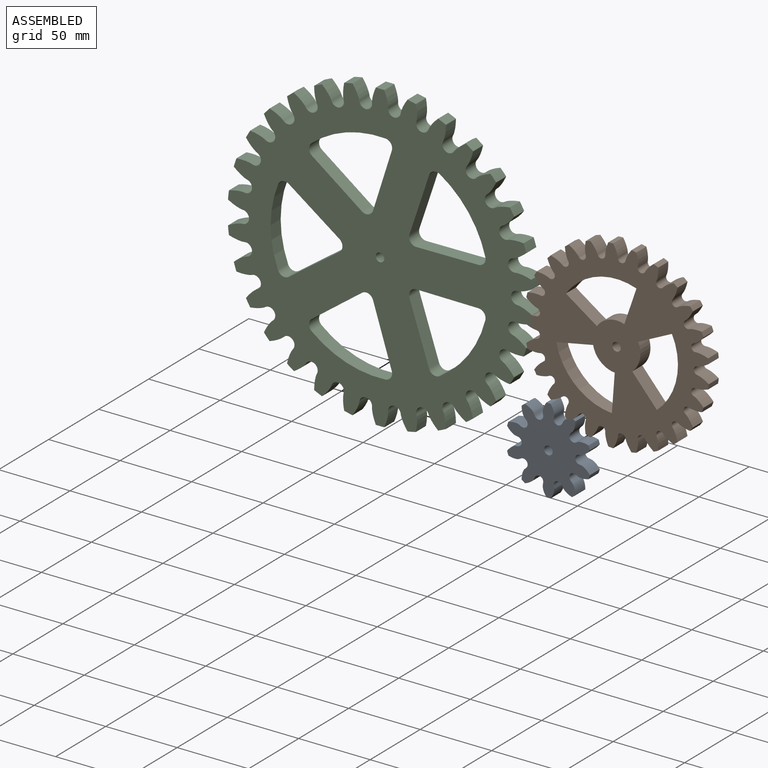
[diagram: assembled view]
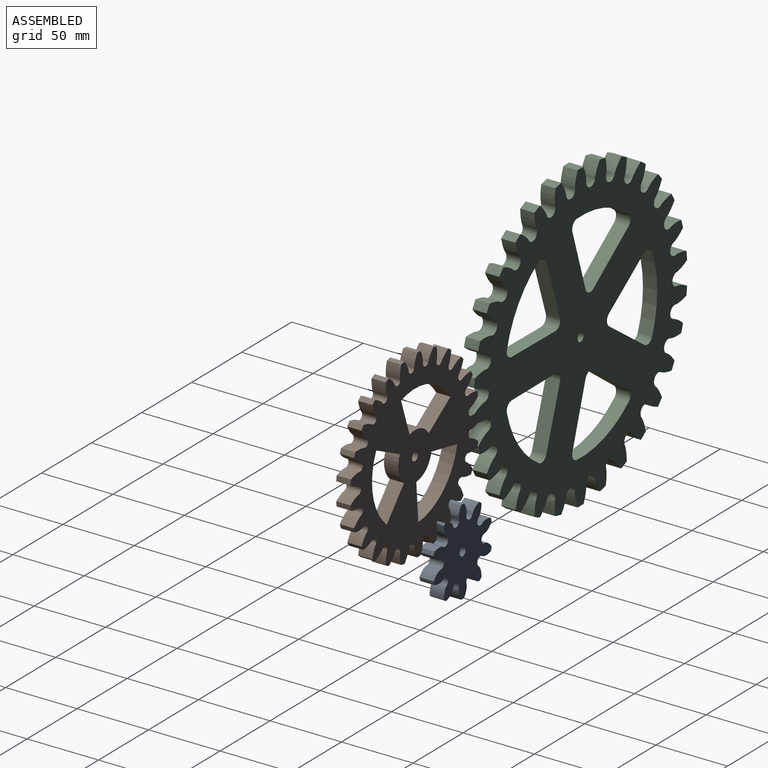
[diagram: assembled view, second angle]
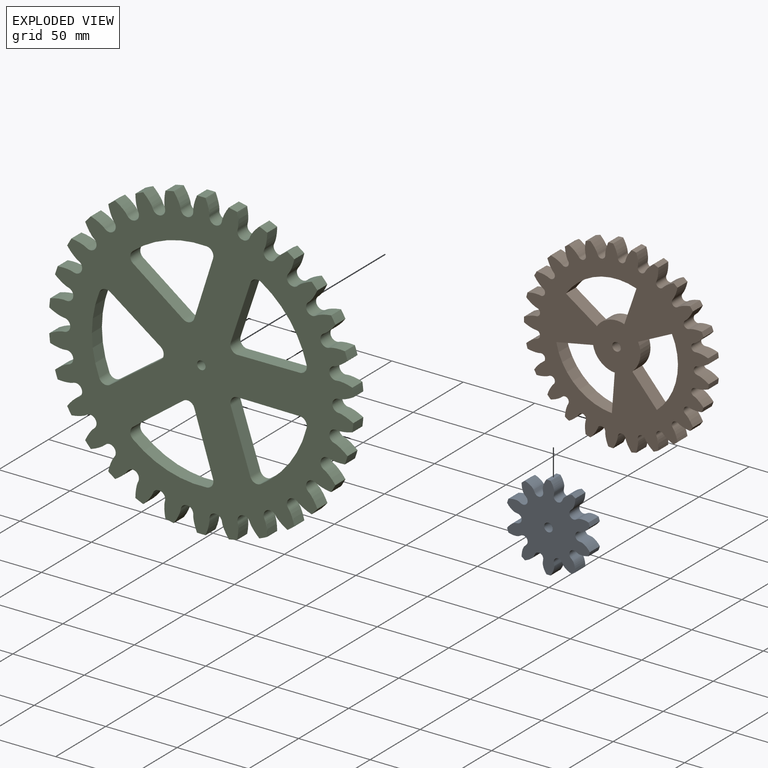
[diagram: exploded view]
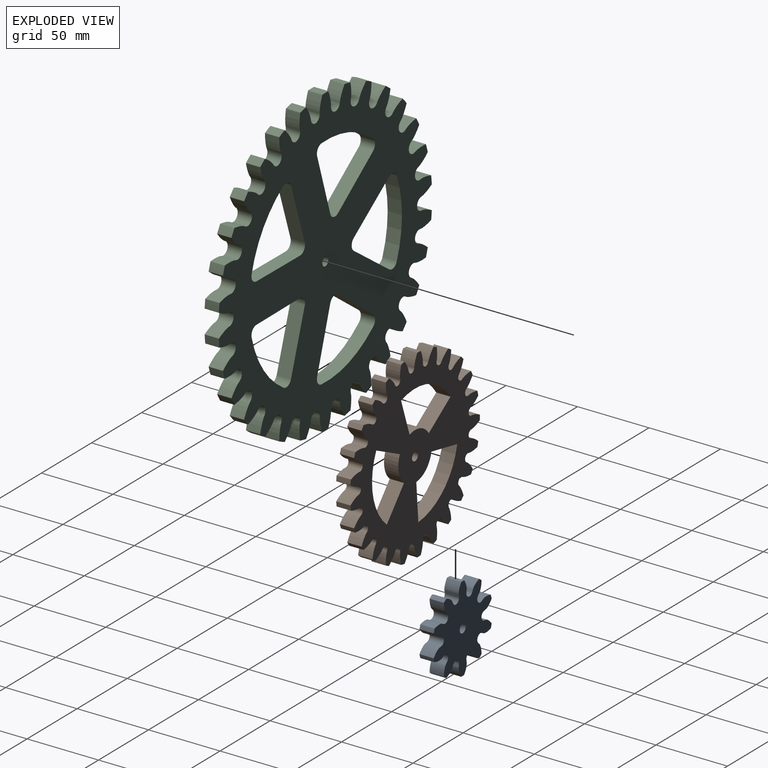
[diagram: exploded view, second angle]
ASSEMBLY  parts=3 mates=2
PART A: 43 faces, bbox 58x10x60.1 mm
  f0: cylinder r=30mm len=10mm, axis (0,1,0), area 29.4mm2, adj f9,f10,f37,f41
  f1: cylinder r=30mm len=10mm, axis (0,1,0), area 29.4mm2, adj f9,f10,f13,f38
  f2: cylinder r=30mm len=10mm, axis (0,1,0), area 29.4mm2, adj f9,f10,f31,f35
  f3: cylinder r=30mm len=10mm, axis (0,1,0), area 29.4mm2, adj f9,f10,f32,f40
  f4: cylinder r=30mm len=10mm, axis (0,1,0), area 29.4mm2, adj f9,f10,f25,f29
  f5: cylinder r=30mm len=10mm, axis (0,1,0), area 29.4mm2, adj f9,f10,f22,f26
  f6: cylinder r=30mm len=10mm, axis (0,1,0), area 29.4mm2, adj f9,f10,f19,f23
  f7: cylinder r=30mm len=10mm, axis (0,1,0), area 29.4mm2, adj f9,f10,f20,f34
  f8: cylinder r=30mm len=10mm, axis (0,1,0), area 29.4mm2, adj f9,f10,f17,f28
  f9: plane 60.05x58.03mm, normal (0,-1,0), area 1867mm2, adj f0,f1,f2,f3,f4,f5,f6,f7
  f10: plane 60.05x58.03mm, normal (0,1,0), area 1867mm2, adj f0,f1,f2,f3,f4,f5,f6,f7
  f11: cylinder r=3mm len=10mm, axis (0,1,0), area 188.5mm2, adj f9,f10
  f12: cylinder r=30mm len=10mm, axis (0,1,0), area 29.4mm2, adj f9,f10,f14,f16
  f13: extruded ~10x7.55mm, area 93.3mm2, adj f1,f9,f10,f15
  f14: extruded ~10x7.55mm, area 93.3mm2, adj f9,f10,f12,f15
  f15: cylinder r=3.09mm len=10mm, axis (0,1,0), area 88.3mm2, adj f9,f10,f13,f14
  f16: extruded ~10x8.93mm, area 93.3mm2, adj f9,f10,f12,f18
  f17: extruded ~10x8.32mm, area 93.3mm2, adj f8,f9,f10,f18
  f18: cylinder r=3.09mm len=10mm, axis (0,1,0), area 88.3mm2, adj f9,f10,f16,f17
  f19: extruded ~10x7.55mm, area 93.3mm2, adj f6,f9,f10,f21
  f20: extruded ~10x7.55mm, area 93.3mm2, adj f7,f9,f10,f21
  f21: cylinder r=3.09mm len=10mm, axis (0,1,0), area 88.3mm2, adj f9,f10,f19,f20
  f22: extruded ~10x8.32mm, area 93.3mm2, adj f5,f9,f10,f24
  f23: extruded ~10x8.93mm, area 93.3mm2, adj f6,f9,f10,f24
  f24: cylinder r=3.09mm len=10mm, axis (0,1,0), area 88.3mm2, adj f9,f10,f22,f23
  f25: extruded ~10x8.66mm, area 93.3mm2, adj f4,f9,f10,f27
  f26: extruded ~10x6.9mm, area 93.3mm2, adj f5,f9,f10,f27
  f27: cylinder r=3.09mm len=10mm, axis (0,1,0), area 88.3mm2, adj f9,f10,f25,f26
  f28: extruded ~10x6.9mm, area 93.3mm2, adj f8,f9,f10,f30
  f29: extruded ~10x8.66mm, area 93.3mm2, adj f4,f9,f10,f30
  f30: cylinder r=3.09mm len=10mm, axis (0,1,0), area 88.3mm2, adj f9,f10,f28,f29
  f31: extruded ~10x6.9mm, area 93.3mm2, adj f2,f9,f10,f33
  f32: extruded ~10x8.66mm, area 93.3mm2, adj f3,f9,f10,f33
  f33: cylinder r=3.09mm len=10mm, axis (0,1,0), area 88.3mm2, adj f9,f10,f31,f32
  f34: extruded ~10x8.93mm, area 93.3mm2, adj f7,f9,f10,f36
  f35: extruded ~10x8.32mm, area 93.3mm2, adj f2,f9,f10,f36
  f36: cylinder r=3.09mm len=10mm, axis (0,1,0), area 88.3mm2, adj f9,f10,f34,f35
  f37: extruded ~10x8.32mm, area 93.3mm2, adj f0,f9,f10,f39
  f38: extruded ~10x8.93mm, area 93.3mm2, adj f1,f9,f10,f39
  f39: cylinder r=3.09mm len=10mm, axis (0,1,0), area 88.3mm2, adj f9,f10,f37,f38
  f40: extruded ~10x8.66mm, area 93.3mm2, adj f3,f9,f10,f42
  f41: extruded ~10x6.9mm, area 93.3mm2, adj f0,f9,f10,f42
  f42: cylinder r=3.09mm len=10mm, axis (0,1,0), area 88.3mm2, adj f9,f10,f40,f41
PART B: 115 faces, bbox 129.3x10x129.5 mm
  f0: plane 129.52x129.29mm, normal (0,-1,0), area 8097.1mm2, adj f2,f3,f4,f5,f6,f7,f8,f9
  f1: plane 129.52x129.29mm, normal (0,1,0), area 8097.1mm2, adj f2,f3,f4,f5,f6,f7,f8,f9
  f2: cylinder r=64.8mm len=10mm, axis (0,1,0), area 34.5mm2, adj f0,f1,f94,f101
  f3: cylinder r=64.8mm len=10mm, axis (0,1,0), area 34.5mm2, adj f0,f1,f98,f100
  f4: cylinder r=64.8mm len=10mm, axis (0,1,0), area 34.5mm2, adj f0,f1,f91,f95
  f5: cylinder r=64.8mm len=10mm, axis (0,1,0), area 34.5mm2, adj f0,f1,f28,f92
  f6: cylinder r=64.8mm len=10mm, axis (0,1,0), area 34.5mm2, adj f0,f1,f89,f97
  f7: cylinder r=64.8mm len=10mm, axis (0,1,0), area 34.5mm2, adj f0,f1,f86,f88
  f8: cylinder r=64.8mm len=10mm, axis (0,1,0), area 34.5mm2, adj f0,f1,f83,f85
  f9: cylinder r=64.8mm len=10mm, axis (0,1,0), area 34.5mm2, adj f0,f1,f80,f82
  f10: cylinder r=64.8mm len=10mm, axis (0,1,0), area 34.5mm2, adj f0,f1,f73,f77
  f11: cylinder r=64.8mm len=10mm, axis (0,1,0), area 34.5mm2, adj f0,f1,f74,f79
  f12: cylinder r=64.8mm len=10mm, axis (0,1,0), area 34.5mm2, adj f0,f1,f71,f76
  f13: cylinder r=64.8mm len=10mm, axis (0,1,0), area 34.5mm2, adj f0,f1,f68,f70
  f14: cylinder r=64.8mm len=10mm, axis (0,1,0), area 34.5mm2, adj f0,f1,f65,f67
  f15: cylinder r=64.8mm len=10mm, axis (0,1,0), area 34.5mm2, adj f0,f1,f62,f64
  f16: cylinder r=64.8mm len=10mm, axis (0,1,0), area 34.5mm2, adj f0,f1,f55,f59
  f17: cylinder r=64.8mm len=10mm, axis (0,1,0), area 34.5mm2, adj f0,f1,f56,f61
  f18: cylinder r=64.8mm len=10mm, axis (0,1,0), area 34.5mm2, adj f0,f1,f53,f58
  f19: cylinder r=64.8mm len=10mm, axis (0,1,0), area 34.5mm2, adj f0,f1,f50,f52
  f20: cylinder r=64.8mm len=10mm, axis (0,1,0), area 34.5mm2, adj f0,f1,f47,f49
  f21: cylinder r=64.8mm len=10mm, axis (0,1,0), area 34.5mm2, adj f0,f1,f44,f46
  f22: cylinder r=64.8mm len=10mm, axis (0,1,0), area 34.5mm2, adj f0,f1,f37,f41
  f23: cylinder r=64.8mm len=10mm, axis (0,1,0), area 34.5mm2, adj f0,f1,f31,f38
  f24: cylinder r=64.8mm len=10mm, axis (0,1,0), area 34.5mm2, adj f0,f1,f35,f43
  f25: cylinder r=64.8mm len=10mm, axis (0,1,0), area 34.5mm2, adj f0,f1,f32,f34
  f26: cylinder r=3mm len=10mm, axis (0,1,0), area 188.5mm2, adj f0,f1
  f27: cylinder r=64.8mm len=10mm, axis (0,1,0), area 34.5mm2, adj f0,f1,f29,f40
  f28: extruded ~10x8.03mm, area 89.2mm2, adj f0,f1,f5,f30
  f29: extruded ~10x8.03mm, area 89.2mm2, adj f0,f1,f27,f30
  f30: cylinder r=2.73mm len=10mm, axis (0,1,0), area 80.1mm2, adj f0,f1,f28,f29
  f31: extruded ~10x8.39mm, area 89.2mm2, adj f0,f1,f23,f33
  f32: extruded ~10x8.19mm, area 89.2mm2, adj f0,f1,f25,f33
  f33: cylinder r=2.73mm len=10mm, axis (0,1,0), area 80.1mm2, adj f0,f1,f31,f32
  f34: extruded ~10x7.43mm, area 89.2mm2, adj f0,f1,f25,f36
  f35: extruded ~10x8.76mm, area 89.2mm2, adj f0,f1,f24,f36
  f36: cylinder r=2.73mm len=10mm, axis (0,1,0), area 80.1mm2, adj f0,f1,f34,f35
  f37: extruded ~10x8.82mm, area 89.2mm2, adj f0,f1,f22,f39
  f38: extruded ~10x7.11mm, area 89.2mm2, adj f0,f1,f23,f39
  f39: cylinder r=2.73mm len=10mm, axis (0,1,0), area 80.1mm2, adj f0,f1,f37,f38
  f40: extruded ~10x8.7mm, area 89.2mm2, adj f0,f1,f27,f42
  f41: extruded ~10x6.86mm, area 89.2mm2, adj f0,f1,f22,f42
  f42: cylinder r=2.73mm len=10mm, axis (0,1,0), area 80.1mm2, adj f0,f1,f40,f41
  f43: extruded ~10x6.5mm, area 89.2mm2, adj f0,f1,f24,f45
  f44: extruded ~10x8.78mm, area 89.2mm2, adj f0,f1,f21,f45
  f45: cylinder r=2.73mm len=10mm, axis (0,1,0), area 80.1mm2, adj f0,f1,f43,f44
  f46: extruded ~10x7.79mm, area 89.2mm2, adj f0,f1,f21,f48
  f47: extruded ~10x8.25mm, area 89.2mm2, adj f0,f1,f20,f48
  f48: cylinder r=2.73mm len=10mm, axis (0,1,0), area 80.1mm2, adj f0,f1,f46,f47
  f49: extruded ~10x8.58mm, area 89.2mm2, adj f0,f1,f20,f51
  f50: extruded ~10x7.2mm, area 89.2mm2, adj f0,f1,f19,f51
  f51: cylinder r=2.73mm len=10mm, axis (0,1,0), area 80.1mm2, adj f0,f1,f49,f50
  f52: extruded ~10x8.84mm, area 89.2mm2, adj f0,f1,f19,f54
  f53: extruded ~10x6.76mm, area 89.2mm2, adj f0,f1,f18,f54
  f54: cylinder r=2.73mm len=10mm, axis (0,1,0), area 80.1mm2, adj f0,f1,f52,f53
  f55: extruded ~10x7.71mm, area 89.2mm2, adj f0,f1,f16,f57
  f56: extruded ~10x8.67mm, area 89.2mm2, adj f0,f1,f17,f57
  f57: cylinder r=2.73mm len=10mm, axis (0,1,0), area 80.1mm2, adj f0,f1,f55,f56
  f58: extruded ~10x8.55mm, area 89.2mm2, adj f0,f1,f18,f60
  f59: extruded ~10x7.97mm, area 89.2mm2, adj f0,f1,f16,f60
  f60: cylinder r=2.73mm len=10mm, axis (0,1,0), area 80.1mm2, adj f0,f1,f58,f59
  f61: extruded ~10x6.39mm, area 89.2mm2, adj f0,f1,f17,f63
  f62: extruded ~10x8.83mm, area 89.2mm2, adj f0,f1,f15,f63
  f63: cylinder r=2.73mm len=10mm, axis (0,1,0), area 80.1mm2, adj f0,f1,f61,f62
  f64: extruded ~10x7.51mm, area 89.2mm2, adj f0,f1,f15,f66
  f65: extruded ~10x8.43mm, area 89.2mm2, adj f0,f1,f14,f66
  f66: cylinder r=2.73mm len=10mm, axis (0,1,0), area 80.1mm2, adj f0,f1,f64,f65
  f67: extruded ~10x8.43mm, area 89.2mm2, adj f0,f1,f14,f69
  f68: extruded ~10x7.51mm, area 89.2mm2, adj f0,f1,f13,f69
  f69: cylinder r=2.73mm len=10mm, axis (0,1,0), area 80.1mm2, adj f0,f1,f67,f68
  f70: extruded ~10x8.83mm, area 89.2mm2, adj f0,f1,f13,f72
  f71: extruded ~10x6.39mm, area 89.2mm2, adj f0,f1,f12,f72
  f72: cylinder r=2.73mm len=10mm, axis (0,1,0), area 80.1mm2, adj f0,f1,f70,f71
  f73: extruded ~10x7.97mm, area 89.2mm2, adj f0,f1,f10,f75
  f74: extruded ~10x8.55mm, area 89.2mm2, adj f0,f1,f11,f75
  f75: cylinder r=2.73mm len=10mm, axis (0,1,0), area 80.1mm2, adj f0,f1,f73,f74
  f76: extruded ~10x8.67mm, area 89.2mm2, adj f0,f1,f12,f78
  f77: extruded ~10x7.71mm, area 89.2mm2, adj f0,f1,f10,f78
  f78: cylinder r=2.73mm len=10mm, axis (0,1,0), area 80.1mm2, adj f0,f1,f76,f77
  f79: extruded ~10x6.76mm, area 89.2mm2, adj f0,f1,f11,f81
  f80: extruded ~10x8.84mm, area 89.2mm2, adj f0,f1,f9,f81
  f81: cylinder r=2.73mm len=10mm, axis (0,1,0), area 80.1mm2, adj f0,f1,f79,f80
  f82: extruded ~10x7.2mm, area 89.2mm2, adj f0,f1,f9,f84
  f83: extruded ~10x8.58mm, area 89.2mm2, adj f0,f1,f8,f84
  f84: cylinder r=2.73mm len=10mm, axis (0,1,0), area 80.1mm2, adj f0,f1,f82,f83
  f85: extruded ~10x8.25mm, area 89.2mm2, adj f0,f1,f8,f87
  f86: extruded ~10x7.79mm, area 89.2mm2, adj f0,f1,f7,f87
  f87: cylinder r=2.73mm len=10mm, axis (0,1,0), area 80.1mm2, adj f0,f1,f85,f86
  f88: extruded ~10x8.78mm, area 89.2mm2, adj f0,f1,f7,f90
  f89: extruded ~10x6.5mm, area 89.2mm2, adj f0,f1,f6,f90
  f90: cylinder r=2.73mm len=10mm, axis (0,1,0), area 80.1mm2, adj f0,f1,f88,f89
  f91: extruded ~10x6.86mm, area 89.2mm2, adj f0,f1,f4,f93
  f92: extruded ~10x8.7mm, area 89.2mm2, adj f0,f1,f5,f93
  f93: cylinder r=2.73mm len=10mm, axis (0,1,0), area 80.1mm2, adj f0,f1,f91,f92
  f94: extruded ~10x7.11mm, area 89.2mm2, adj f0,f1,f2,f96
  f95: extruded ~10x8.82mm, area 89.2mm2, adj f0,f1,f4,f96
  f96: cylinder r=2.73mm len=10mm, axis (0,1,0), area 80.1mm2, adj f0,f1,f94,f95
  f97: extruded ~10x8.76mm, area 89.2mm2, adj f0,f1,f6,f99
  f98: extruded ~10x7.43mm, area 89.2mm2, adj f0,f1,f3,f99
  f99: cylinder r=2.73mm len=10mm, axis (0,1,0), area 80.1mm2, adj f0,f1,f97,f98
  f100: extruded ~10x8.19mm, area 89.2mm2, adj f0,f1,f3,f102
  f101: extruded ~10x8.39mm, area 89.2mm2, adj f0,f1,f2,f102
  f102: cylinder r=2.73mm len=10mm, axis (0,1,0), area 80.1mm2, adj f0,f1,f100,f101
  f103: plane 23.66x11.34mm, normal (0.43,0,-0.9), area 262.4mm2, adj f0,f1,f104,f106
  f104: cylinder r=16.72mm len=19.83mm, axis (0,-1,0), area 217.5mm2, adj f0,f1,f103,f105
  f105: plane 19.78x17.24mm, normal (0.75,0,0.66), area 262.4mm2, adj f0,f1,f104,f106
  f106: cylinder r=42.96mm len=50.96mm, axis (0,-1,0), area 558.9mm2, adj f0,f1,f103,f105
  f107: plane 21.65x14.82mm, normal (0.56,0,0.83), area 262.4mm2, adj f0,f1,f108,f110
  f108: cylinder r=16.72mm len=19.22mm, axis (0,-1,0), area 217.5mm2, adj f0,f1,f107,f109
  f109: plane 24.82x10mm, normal (-0.95,0,0.32), area 262.4mm2, adj f0,f1,f108,f110
  f110: cylinder r=42.96mm len=49.39mm, axis (0,-1,0), area 558.9mm2, adj f0,f1,f107,f109
  f111: plane 26.16x10mm, normal (-1,0,0.08), area 262.4mm2, adj f0,f1,f112,f114
  f112: cylinder r=16.72mm len=15.13mm, axis (0,-1,0), area 217.5mm2, adj f0,f1,f111,f113
  f113: plane 25.75x10mm, normal (0.19,0,-0.98), area 262.4mm2, adj f0,f1,f112,f114
  f114: cylinder r=42.96mm len=38.87mm, axis (0,-1,0), area 558.9mm2, adj f0,f1,f111,f113
PART C: 153 faces, bbox 212.7x10x213.3 mm
  f0: cylinder r=106.67mm len=10mm, axis (0,1,0), area 60mm2, adj f29,f30,f117,f121
  f1: cylinder r=106.67mm len=10mm, axis (0,1,0), area 60mm2, adj f29,f30,f114,f118
  f2: cylinder r=106.67mm len=10mm, axis (0,1,0), area 60mm2, adj f29,f30,f111,f115
  f3: cylinder r=106.67mm len=10mm, axis (0,1,0), area 60mm2, adj f29,f30,f105,f112
  f4: cylinder r=106.67mm len=10mm, axis (0,1,0), area 60mm2, adj f29,f30,f102,f109
  f5: cylinder r=106.67mm len=10mm, axis (0,1,0), area 60mm2, adj f29,f30,f106,f108
  f6: cylinder r=106.67mm len=10mm, axis (0,1,0), area 60mm2, adj f29,f30,f99,f103
  f7: cylinder r=106.67mm len=10mm, axis (0,1,0), area 60mm2, adj f29,f30,f33,f100
  f8: cylinder r=106.67mm len=10mm, axis (0,1,0), area 60mm2, adj f29,f30,f90,f97
  f9: cylinder r=106.67mm len=10mm, axis (0,1,0), area 60mm2, adj f29,f30,f94,f96
  f10: cylinder r=106.67mm len=10mm, axis (0,1,0), area 60mm2, adj f29,f30,f87,f91
  f11: cylinder r=106.67mm len=10mm, axis (0,1,0), area 60mm2, adj f29,f30,f88,f120
  f12: cylinder r=106.67mm len=10mm, axis (0,1,0), area 60mm2, adj f29,f30,f85,f93
  f13: cylinder r=106.67mm len=10mm, axis (0,1,0), area 60mm2, adj f29,f30,f82,f84
  f14: cylinder r=106.67mm len=10mm, axis (0,1,0), area 60mm2, adj f29,f30,f79,f81
  f15: cylinder r=106.67mm len=10mm, axis (0,1,0), area 60mm2, adj f29,f30,f76,f78
  f16: cylinder r=106.67mm len=10mm, axis (0,1,0), area 60mm2, adj f29,f30,f66,f73
  f17: cylinder r=106.67mm len=10mm, axis (0,1,0), area 60mm2, adj f29,f30,f70,f72
  f18: cylinder r=106.67mm len=10mm, axis (0,1,0), area 60mm2, adj f29,f30,f63,f67
  f19: cylinder r=106.67mm len=10mm, axis (0,1,0), area 60mm2, adj f29,f30,f64,f75
  f20: cylinder r=106.67mm len=10mm, axis (0,1,0), area 60mm2, adj f29,f30,f61,f69
  f21: cylinder r=106.67mm len=10mm, axis (0,1,0), area 60mm2, adj f29,f30,f58,f60
  f22: cylinder r=106.67mm len=10mm, axis (0,1,0), area 60mm2, adj f29,f30,f55,f57
  f23: cylinder r=106.67mm len=10mm, axis (0,1,0), area 60mm2, adj f29,f30,f52,f54
  f24: cylinder r=106.67mm len=10mm, axis (0,1,0), area 60mm2, adj f29,f30,f45,f49
  f25: cylinder r=106.67mm len=10mm, axis (0,1,0), area 60mm2, adj f29,f30,f39,f46
  f26: cylinder r=106.67mm len=10mm, axis (0,1,0), area 60mm2, adj f29,f30,f43,f51
  f27: cylinder r=106.67mm len=10mm, axis (0,1,0), area 60mm2, adj f29,f30,f40,f42
  f28: cylinder r=106.67mm len=10mm, axis (0,1,0), area 60mm2, adj f29,f30,f37,f48
  f29: plane 213.33x212.73mm, normal (0,-1,0), area 21893.4mm2, adj f0,f1,f2,f3,f4,f5,f6,f7
  f30: plane 213.33x212.73mm, normal (0,1,0), area 21893.4mm2, adj f0,f1,f2,f3,f4,f5,f6,f7
  f31: cylinder r=3mm len=10mm, axis (0,1,0), area 188.5mm2, adj f29,f30
  f32: cylinder r=106.67mm len=10mm, axis (0,1,0), area 60mm2, adj f29,f30,f34,f36
  f33: extruded ~10.49x10mm, area 112.3mm2, adj f7,f29,f30,f35
  f34: extruded ~10.49x10mm, area 112.3mm2, adj f29,f30,f32,f35
  f35: cylinder r=4.43mm len=10mm, axis (0,1,0), area 134.5mm2, adj f29,f30,f33,f34
  f36: extruded ~11.04x10mm, area 112.3mm2, adj f29,f30,f32,f38
  f37: extruded ~10x9.48mm, area 112.3mm2, adj f28,f29,f30,f38
  f38: cylinder r=4.43mm len=10mm, axis (0,1,0), area 134.5mm2, adj f29,f30,f36,f37
  f39: extruded ~10x9.8mm, area 112.3mm2, adj f25,f29,f30,f41
  f40: extruded ~10.3x10mm, area 112.3mm2, adj f27,f29,f30,f41
  f41: cylinder r=4.43mm len=10mm, axis (0,1,0), area 134.5mm2, adj f29,f30,f39,f40
  f42: extruded ~10x8.48mm, area 112.3mm2, adj f27,f29,f30,f44
  f43: extruded ~10.95x10mm, area 112.3mm2, adj f26,f29,f30,f44
  f44: cylinder r=4.43mm len=10mm, axis (0,1,0), area 134.5mm2, adj f29,f30,f42,f43
  f45: extruded ~10.68x10mm, area 112.3mm2, adj f24,f29,f30,f47
  f46: extruded ~10x9.19mm, area 112.3mm2, adj f25,f29,f30,f47
  f47: cylinder r=4.43mm len=10mm, axis (0,1,0), area 134.5mm2, adj f29,f30,f45,f46
  f48: extruded ~11.1x10mm, area 112.3mm2, adj f28,f29,f30,f50
  f49: extruded ~10x8.06mm, area 112.3mm2, adj f24,f29,f30,f50
  f50: cylinder r=4.43mm len=10mm, axis (0,1,0), area 134.5mm2, adj f29,f30,f48,f49
  f51: extruded ~10x8.82mm, area 112.3mm2, adj f26,f29,f30,f53
  f52: extruded ~11.13x10mm, area 112.3mm2, adj f23,f29,f30,f53
  f53: cylinder r=4.43mm len=10mm, axis (0,1,0), area 134.5mm2, adj f29,f30,f51,f52
  f54: extruded ~10.04x10mm, area 112.3mm2, adj f23,f29,f30,f56
  f55: extruded ~10.82x10mm, area 112.3mm2, adj f22,f29,f30,f56
  f56: cylinder r=4.43mm len=10mm, axis (0,1,0), area 134.5mm2, adj f29,f30,f54,f55
  f57: extruded ~10.82x10mm, area 112.3mm2, adj f22,f29,f30,f59
  f58: extruded ~10.04x10mm, area 112.3mm2, adj f21,f29,f30,f59
  f59: cylinder r=4.43mm len=10mm, axis (0,1,0), area 134.5mm2, adj f29,f30,f57,f58
  f60: extruded ~11.13x10mm, area 112.3mm2, adj f21,f29,f30,f62
  f61: extruded ~10x8.82mm, area 112.3mm2, adj f20,f29,f30,f62
  f62: cylinder r=4.43mm len=10mm, axis (0,1,0), area 134.5mm2, adj f29,f30,f60,f61
  f63: extruded ~10x8.06mm, area 112.3mm2, adj f18,f29,f30,f65
  f64: extruded ~11.1x10mm, area 112.3mm2, adj f19,f29,f30,f65
  f65: cylinder r=4.43mm len=10mm, axis (0,1,0), area 134.5mm2, adj f29,f30,f63,f64
  f66: extruded ~10x9.19mm, area 112.3mm2, adj f16,f29,f30,f68
  f67: extruded ~10.68x10mm, area 112.3mm2, adj f18,f29,f30,f68
  f68: cylinder r=4.43mm len=10mm, axis (0,1,0), area 134.5mm2, adj f29,f30,f66,f67
  f69: extruded ~10.95x10mm, area 112.3mm2, adj f20,f29,f30,f71
  f70: extruded ~10x8.48mm, area 112.3mm2, adj f17,f29,f30,f71
  f71: cylinder r=4.43mm len=10mm, axis (0,1,0), area 134.5mm2, adj f29,f30,f69,f70
  f72: extruded ~10.3x10mm, area 112.3mm2, adj f17,f29,f30,f74
  f73: extruded ~10x9.8mm, area 112.3mm2, adj f16,f29,f30,f74
  f74: cylinder r=4.43mm len=10mm, axis (0,1,0), area 134.5mm2, adj f29,f30,f72,f73
  f75: extruded ~10x9.48mm, area 112.3mm2, adj f19,f29,f30,f77
  f76: extruded ~11.04x10mm, area 112.3mm2, adj f15,f29,f30,f77
  f77: cylinder r=4.43mm len=10mm, axis (0,1,0), area 134.5mm2, adj f29,f30,f75,f76
  f78: extruded ~10.49x10mm, area 112.3mm2, adj f15,f29,f30,f80
  f79: extruded ~10.49x10mm, area 112.3mm2, adj f14,f29,f30,f80
  f80: cylinder r=4.43mm len=10mm, axis (0,1,0), area 134.5mm2, adj f29,f30,f78,f79
  f81: extruded ~11.04x10mm, area 112.3mm2, adj f14,f29,f30,f83
  f82: extruded ~10x9.48mm, area 112.3mm2, adj f13,f29,f30,f83
  f83: cylinder r=4.43mm len=10mm, axis (0,1,0), area 134.5mm2, adj f29,f30,f81,f82
  f84: extruded ~11.1x10mm, area 112.3mm2, adj f13,f29,f30,f86
  f85: extruded ~10x8.06mm, area 112.3mm2, adj f12,f29,f30,f86
  f86: cylinder r=4.43mm len=10mm, axis (0,1,0), area 134.5mm2, adj f29,f30,f84,f85
  f87: extruded ~10x8.82mm, area 112.3mm2, adj f10,f29,f30,f89
  f88: extruded ~11.13x10mm, area 112.3mm2, adj f11,f29,f30,f89
  f89: cylinder r=4.43mm len=10mm, axis (0,1,0), area 134.5mm2, adj f29,f30,f87,f88
  f90: extruded ~10x8.48mm, area 112.3mm2, adj f8,f29,f30,f92
  f91: extruded ~10.95x10mm, area 112.3mm2, adj f10,f29,f30,f92
  f92: cylinder r=4.43mm len=10mm, axis (0,1,0), area 134.5mm2, adj f29,f30,f90,f91
  f93: extruded ~10.68x10mm, area 112.3mm2, adj f12,f29,f30,f95
  f94: extruded ~10x9.19mm, area 112.3mm2, adj f9,f29,f30,f95
  f95: cylinder r=4.43mm len=10mm, axis (0,1,0), area 134.5mm2, adj f29,f30,f93,f94
  f96: extruded ~10x9.8mm, area 112.3mm2, adj f9,f29,f30,f98
  f97: extruded ~10.3x10mm, area 112.3mm2, adj f8,f29,f30,f98
  f98: cylinder r=4.43mm len=10mm, axis (0,1,0), area 134.5mm2, adj f29,f30,f96,f97
  f99: extruded ~10x9.48mm, area 112.3mm2, adj f6,f29,f30,f101
  f100: extruded ~11.04x10mm, area 112.3mm2, adj f7,f29,f30,f101
  f101: cylinder r=4.43mm len=10mm, axis (0,1,0), area 134.5mm2, adj f29,f30,f99,f100
  f102: extruded ~10x8.06mm, area 112.3mm2, adj f4,f29,f30,f104
  f103: extruded ~11.1x10mm, area 112.3mm2, adj f6,f29,f30,f104
  f104: cylinder r=4.43mm len=10mm, axis (0,1,0), area 134.5mm2, adj f29,f30,f102,f103
  f105: extruded ~10.3x10mm, area 112.3mm2, adj f3,f29,f30,f107
  f106: extruded ~10x9.8mm, area 112.3mm2, adj f5,f29,f30,f107
  f107: cylinder r=4.43mm len=10mm, axis (0,1,0), area 134.5mm2, adj f29,f30,f105,f106
  f108: extruded ~10x9.19mm, area 112.3mm2, adj f5,f29,f30,f110
  f109: extruded ~10.68x10mm, area 112.3mm2, adj f4,f29,f30,f110
  f110: cylinder r=4.43mm len=10mm, axis (0,1,0), area 134.5mm2, adj f29,f30,f108,f109
  f111: extruded ~10.95x10mm, area 112.3mm2, adj f2,f29,f30,f113
  f112: extruded ~10x8.48mm, area 112.3mm2, adj f3,f29,f30,f113
  f113: cylinder r=4.43mm len=10mm, axis (0,1,0), area 134.5mm2, adj f29,f30,f111,f112
  f114: extruded ~11.13x10mm, area 112.3mm2, adj f1,f29,f30,f116
  f115: extruded ~10x8.82mm, area 112.3mm2, adj f2,f29,f30,f116
  f116: cylinder r=4.43mm len=10mm, axis (0,1,0), area 134.5mm2, adj f29,f30,f114,f115
  f117: extruded ~10.82x10mm, area 112.3mm2, adj f0,f29,f30,f119
  f118: extruded ~10.04x10mm, area 112.3mm2, adj f1,f29,f30,f119
  f119: cylinder r=4.43mm len=10mm, axis (0,1,0), area 134.5mm2, adj f29,f30,f117,f118
  f120: extruded ~10.04x10mm, area 112.3mm2, adj f11,f29,f30,f122
  f121: extruded ~10.82x10mm, area 112.3mm2, adj f0,f29,f30,f122
  f122: cylinder r=4.43mm len=10mm, axis (0,1,0), area 134.5mm2, adj f29,f30,f120,f121
  f123: cylinder r=5mm len=10mm, axis (0,-1,0), area 90.7mm2, adj f29,f30,f124,f128
  f124: cylinder r=73.53mm len=54.3mm, axis (0,-1,0), area 556.1mm2, adj f29,f30,f123,f125
  f125: cylinder r=5mm len=10mm, axis (0,-1,0), area 90.7mm2, adj f29,f30,f124,f126
  f126: plane 35.39x25.3mm, normal (-0.58,0,0.81), area 435.1mm2, adj f29,f30,f125,f127
  f127: cylinder r=5mm len=10mm, axis (0,-1,0), area 95mm2, adj f29,f30,f126,f128
  f128: plane 35.39x25.3mm, normal (-0.58,0,-0.81), area 435.1mm2, adj f29,f30,f123,f127
  f129: cylinder r=5mm len=10mm, axis (0,-1,0), area 90.7mm2, adj f29,f30,f130,f134
  f130: cylinder r=73.53mm len=51.64mm, axis (0,-1,0), area 556.1mm2, adj f29,f30,f129,f131
  f131: cylinder r=5mm len=10mm, axis (0,-1,0), area 90.7mm2, adj f29,f30,f130,f132
  f132: plane 41.48x13.13mm, normal (-0.95,0,-0.3), area 435.1mm2, adj f29,f30,f131,f133
  f133: cylinder r=5mm len=10mm, axis (0,-1,0), area 95mm2, adj f29,f30,f132,f134
  f134: plane 35x25.84mm, normal (0.59,0,-0.8), area 435.1mm2, adj f29,f30,f129,f133
  f135: cylinder r=5mm len=10mm, axis (0,-1,0), area 90.7mm2, adj f29,f30,f136,f140
  f136: cylinder r=73.53mm len=43.93mm, axis (0,-1,0), area 556.1mm2, adj f29,f30,f135,f137
  f137: cylinder r=5mm len=10mm, axis (0,-1,0), area 90.7mm2, adj f29,f30,f136,f138
  f138: plane 43.51x10mm, normal (-0.01,0,-1), area 435.1mm2, adj f29,f30,f137,f139
  f139: cylinder r=5mm len=10mm, axis (0,-1,0), area 95mm2, adj f29,f30,f138,f140
  f140: plane 41.27x13.76mm, normal (0.95,0,0.32), area 435.1mm2, adj f29,f30,f135,f139
  f141: cylinder r=5mm len=10mm, axis (0,-1,0), area 90.7mm2, adj f29,f30,f142,f146
  f142: cylinder r=73.53mm len=43.93mm, axis (0,-1,0), area 556.1mm2, adj f29,f30,f141,f143
  f143: cylinder r=5mm len=10mm, axis (0,-1,0), area 90.7mm2, adj f29,f30,f142,f144
  f144: plane 41.27x13.76mm, normal (0.95,0,-0.32), area 435.1mm2, adj f29,f30,f143,f145
  f145: cylinder r=5mm len=10mm, axis (0,-1,0), area 95mm2, adj f29,f30,f144,f146
  f146: plane 43.51x10mm, normal (-0.01,0,1), area 435.1mm2, adj f29,f30,f141,f145
  f147: cylinder r=5mm len=10mm, axis (0,-1,0), area 90.7mm2, adj f29,f30,f148,f152
  f148: cylinder r=73.53mm len=51.64mm, axis (0,-1,0), area 556.1mm2, adj f29,f30,f147,f149
  f149: cylinder r=5mm len=10mm, axis (0,-1,0), area 90.7mm2, adj f29,f30,f148,f150
  f150: plane 35x25.84mm, normal (0.59,0,0.8), area 435.1mm2, adj f29,f30,f149,f151
  f151: cylinder r=5mm len=10mm, axis (0,-1,0), area 95mm2, adj f29,f30,f150,f152
  f152: plane 41.48x13.13mm, normal (-0.95,0,0.3), area 435.1mm2, adj f29,f30,f147,f151
PLACE A t=(-102.43,-36.93,-32.47)mm
PLACE B t=(-54.79,-36.93,45.8)mm
PLACE C t=(-220.27,-36.93,58.1)mm
MATE planar C.f0 <-> B.f2  axis (0,1,0) through (-220.27,-36.93,58.1)mm
MATE planar B.f106 <-> A.f0  axis (0,1,0) through (-54.79,-36.93,45.8)mm
